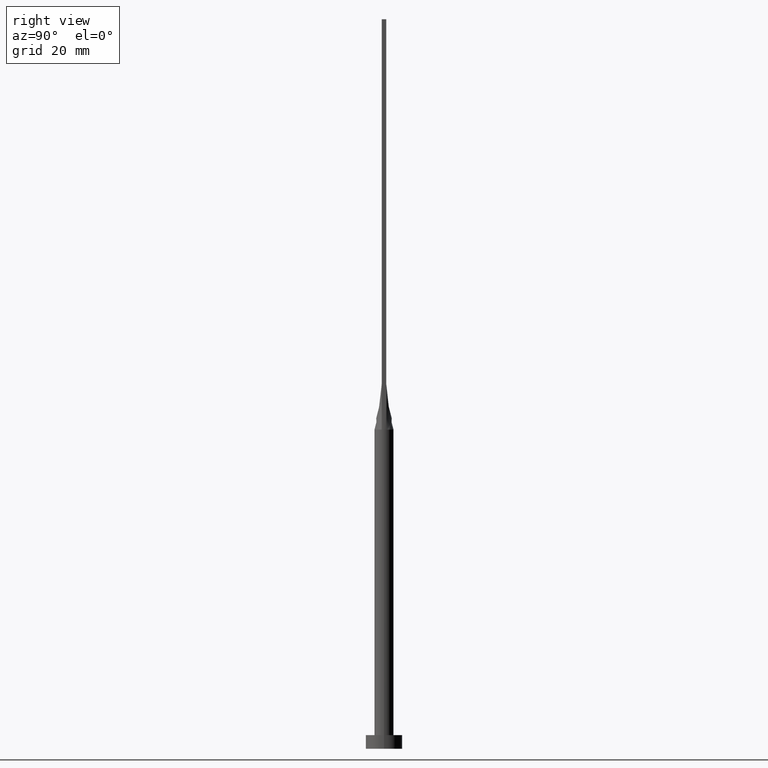
[diagram: clean part render]
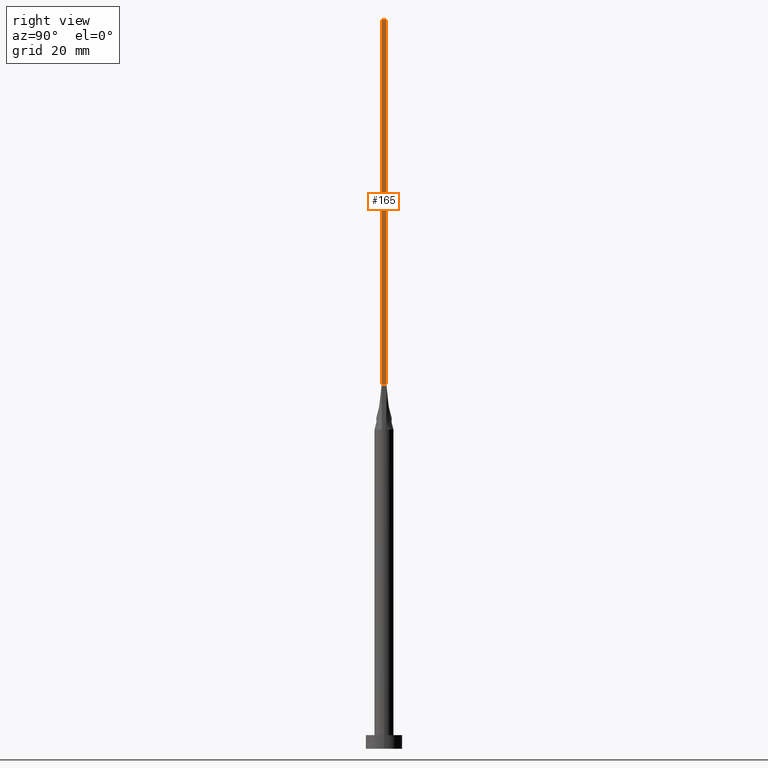
[diagram: same view with one face highlighted and labeled with its STEP entity id]
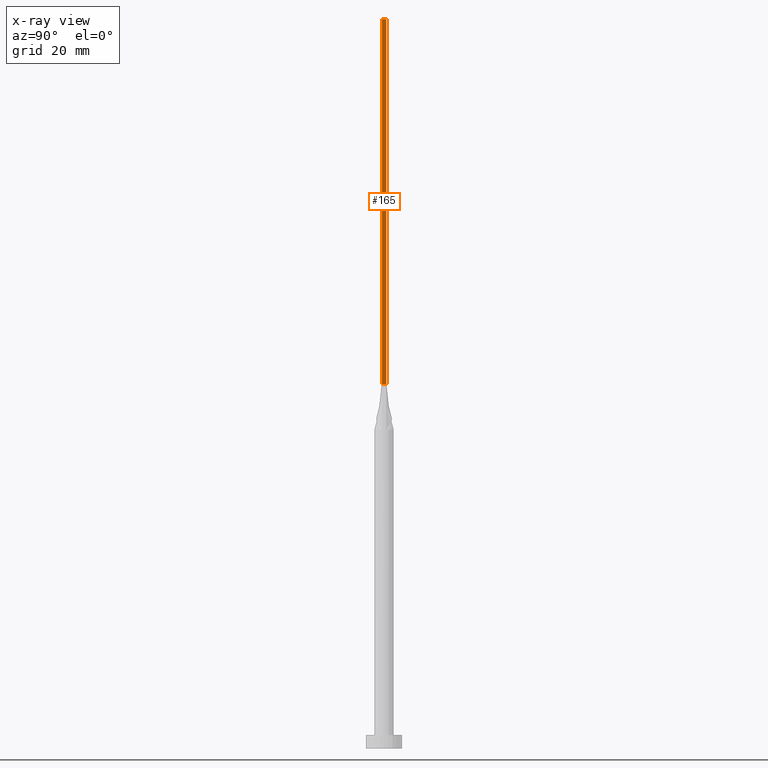
[diagram: x-ray of the same camera — body ghosted, the highlighted face saturated]
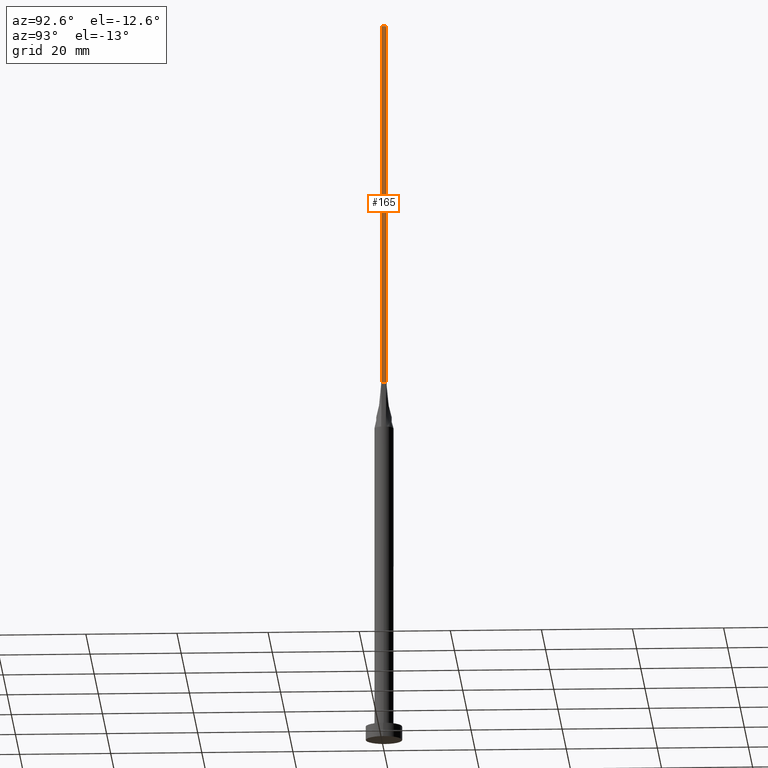
[diagram: same view with one face highlighted and labeled with its STEP entity id]
A machine part, right view. The second image highlights one B-rep face of the part: STEP entity #165.
The next image is the same camera in x-ray: the body ghosted, the highlighted face saturated — about 0% of this face is hidden behind the body in this view.
A second angle (auxiliary view) of the same face is appended — the face is thin or edge-on in the first view.
In plain terms, the highlighted planar face has unit normal (-1, 0, 0).
Its self-contained STEP definition (entity closure, byte-faithful):
#9 = VERTEX_POINT ( 'NONE', #339 ) ;
#31 = VECTOR ( 'NONE', #314, 1000.000000000000000 ) ;
#32 = ORIENTED_EDGE ( 'NONE', *, *, #255, .F. ) ;
#34 = DIRECTION ( 'NONE',  ( -0.000000000000000000, -0.000000000000000000, -1.000000000000000000 ) ) ;
#39 = VERTEX_POINT ( 'NONE', #54 ) ;
#54 = CARTESIAN_POINT ( 'NONE',  ( 1.899999999999999023, -0.4999999999999997780, 160.0000000000000000 ) ) ;
#62 = CARTESIAN_POINT ( 'NONE',  ( 1.899999999999999023, -0.4999999999999997780, 160.0000000000000000 ) ) ;
#63 = VECTOR ( 'NONE', #388, 1000.000000000000000 ) ;
#84 = CARTESIAN_POINT ( 'NONE',  ( 1.899999999999999023, -0.4999999999999997780, 160.0000000000000000 ) ) ;
#94 = DIRECTION ( 'NONE',  ( 6.505213034913026604E-16, 1.000000000000000000, 0.000000000000000000 ) ) ;
#100 = EDGE_LOOP ( 'NONE', ( #183, #32, #448, #392 ) ) ;
#121 = CARTESIAN_POINT ( 'NONE',  ( 1.899999999999999689, 0.5000000000000002220, 160.0000000000000000 ) ) ;
#124 = LINE ( 'NONE', #399, #31 ) ;
#140 = AXIS2_PLACEMENT_3D ( 'NONE', #84, #529, #344 ) ;
#141 = EDGE_CURVE ( 'NONE', #505, #321, #196, .T. ) ;
#153 = VECTOR ( 'NONE', #34, 1000.000000000000000 ) ;
#165 = ADVANCED_FACE ( 'NONE', ( #359 ), #306, .F. ) ;
#183 = ORIENTED_EDGE ( 'NONE', *, *, #141, .T. ) ;
#196 = LINE ( 'NONE', #396, #63 ) ;
#247 = EDGE_CURVE ( 'NONE', #39, #9, #472, .T. ) ;
#250 = CARTESIAN_POINT ( 'NONE',  ( 1.899999999999999023, -0.4999999999999997780, 80.00000000000000000 ) ) ;
#255 = EDGE_CURVE ( 'NONE', #9, #321, #311, .T. ) ;
#275 = EDGE_CURVE ( 'NONE', #39, #505, #124, .T. ) ;
#306 = PLANE ( 'NONE',  #140 ) ;
#311 = LINE ( 'NONE', #121, #153 ) ;
#314 = DIRECTION ( 'NONE',  ( -0.000000000000000000, -0.000000000000000000, -1.000000000000000000 ) ) ;
#321 = VERTEX_POINT ( 'NONE', #353 ) ;
#339 = CARTESIAN_POINT ( 'NONE',  ( 1.899999999999999689, 0.5000000000000002220, 160.0000000000000000 ) ) ;
#344 = DIRECTION ( 'NONE',  ( -6.505213034913026604E-16, -1.000000000000000000, 0.000000000000000000 ) ) ;
#353 = CARTESIAN_POINT ( 'NONE',  ( 1.899999999999999689, 0.5000000000000002220, 80.00000000000000000 ) ) ;
#359 = FACE_OUTER_BOUND ( 'NONE', #100, .T. ) ;
#388 = DIRECTION ( 'NONE',  ( -2.168404344971008868E-16, 1.000000000000000000, -0.000000000000000000 ) ) ;
#392 = ORIENTED_EDGE ( 'NONE', *, *, #275, .T. ) ;
#396 = CARTESIAN_POINT ( 'NONE',  ( 1.899999999999999689, 0.5000000000000002220, 80.00000000000000000 ) ) ;
#399 = CARTESIAN_POINT ( 'NONE',  ( 1.899999999999999023, -0.4999999999999997780, 160.0000000000000000 ) ) ;
#448 = ORIENTED_EDGE ( 'NONE', *, *, #247, .F. ) ;
#472 = LINE ( 'NONE', #62, #544 ) ;
#505 = VERTEX_POINT ( 'NONE', #250 ) ;
#529 = DIRECTION ( 'NONE',  ( -1.000000000000000000, 6.505213034913026604E-16, 0.000000000000000000 ) ) ;
#544 = VECTOR ( 'NONE', #94, 1000.000000000000000 ) ;